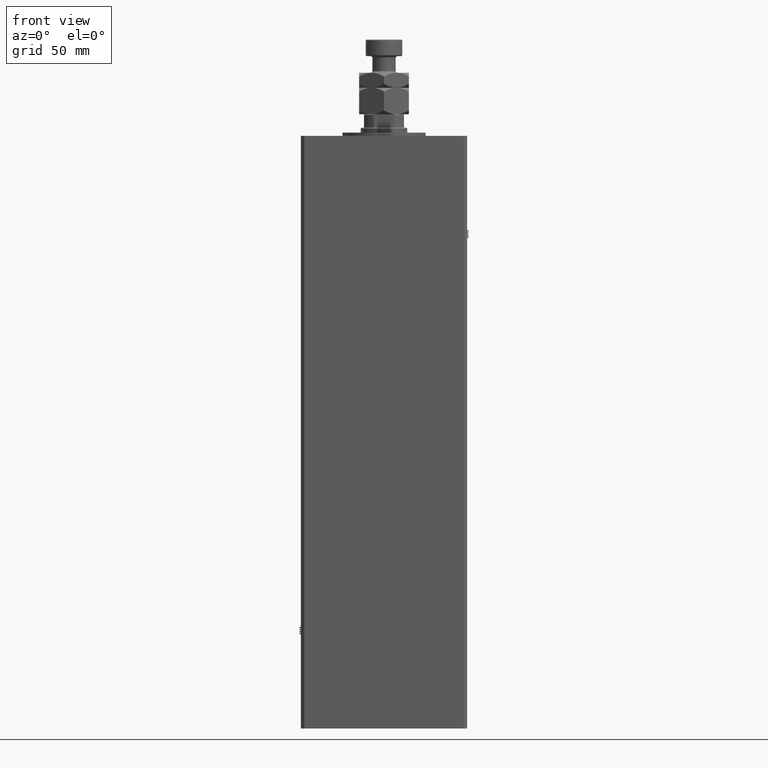
[diagram: clean part render]
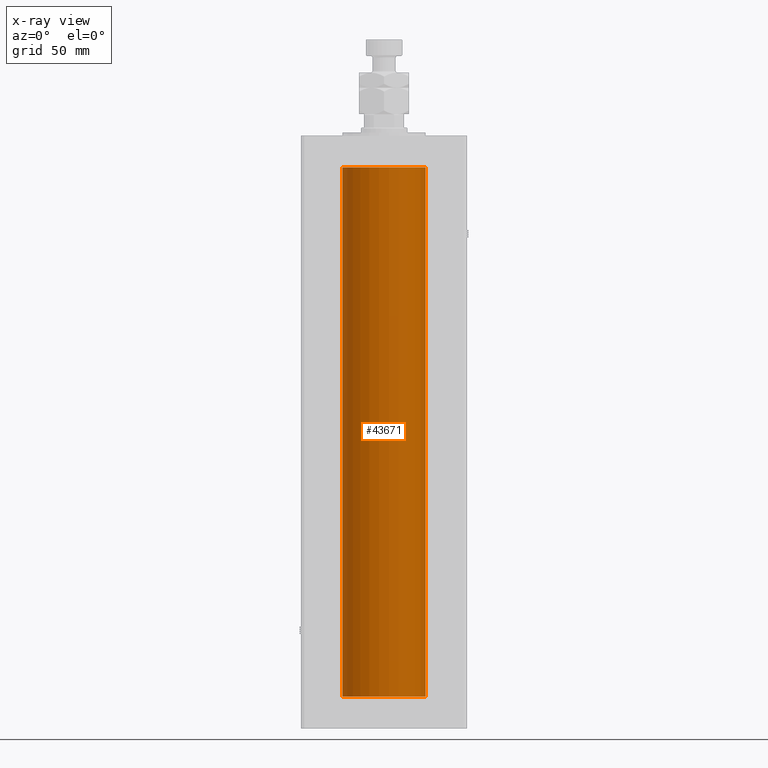
[diagram: x-ray — body ghosted, one internal face saturated and labeled with its STEP entity id]
A machine part, front view, then the same camera in x-ray: the body is ghosted and one INTERNAL B-rep face — a face not visible from any outside direction — is saturated and labeled: STEP entity #43671.
In plain terms, the highlighted cylindrical surface (partial cylindrical patch) has radius 25 mm, axis along (-0, -0, -1).
Its self-contained STEP definition (entity closure, byte-faithful):
#1636 = VECTOR ( 'NONE', #9676, 1000.000000000000000 ) ;
#1721 = CIRCLE ( 'NONE', #44943, 25.00000000000000000 ) ;
#1951 = EDGE_CURVE ( 'NONE', #48012, #3049, #44481, .T. ) ;
#2604 = CARTESIAN_POINT ( 'NONE',  ( -25.00000000000000000, 0.000000000000000000, 318.5000000000000000 ) ) ;
#3049 = VERTEX_POINT ( 'NONE', #12216 ) ;
#6072 = CARTESIAN_POINT ( 'NONE',  ( 0.000000000000000000, 0.000000000000000000, 318.5000000000000000 ) ) ;
#9027 = DIRECTION ( 'NONE',  ( -1.000000000000000000, 0.000000000000000000, 0.000000000000000000 ) ) ;
#9676 = DIRECTION ( 'NONE',  ( -0.000000000000000000, -0.000000000000000000, -1.000000000000000000 ) ) ;
#10965 = ORIENTED_EDGE ( 'NONE', *, *, #1951, .T. ) ;
#12216 = CARTESIAN_POINT ( 'NONE',  ( 25.00000000000000000, 3.061616997868383043E-15, 0.000000000000000000 ) ) ;
#12380 = DIRECTION ( 'NONE',  ( -0.000000000000000000, -0.000000000000000000, -1.000000000000000000 ) ) ;
#13344 = CARTESIAN_POINT ( 'NONE',  ( 0.000000000000000000, 0.000000000000000000, 318.5000000000000000 ) ) ;
#14989 = DIRECTION ( 'NONE',  ( -0.000000000000000000, 0.000000000000000000, 1.000000000000000000 ) ) ;
#15999 = CARTESIAN_POINT ( 'NONE',  ( -25.00000000000000000, 0.000000000000000000, 318.5000000000000000 ) ) ;
#21698 = CARTESIAN_POINT ( 'NONE',  ( -25.00000000000000000, 0.000000000000000000, 0.000000000000000000 ) ) ;
#26299 = DIRECTION ( 'NONE',  ( -0.000000000000000000, -0.000000000000000000, -1.000000000000000000 ) ) ;
#28210 = DIRECTION ( 'NONE',  ( 1.000000000000000000, 0.000000000000000000, 0.000000000000000000 ) ) ;
#29219 = EDGE_LOOP ( 'NONE', ( #32587, #10965, #38887, #35887 ) ) ;
#30130 = VECTOR ( 'NONE', #12380, 1000.000000000000000 ) ;
#32587 = ORIENTED_EDGE ( 'NONE', *, *, #53683, .T. ) ;
#32771 = AXIS2_PLACEMENT_3D ( 'NONE', #13344, #26299, #9027 ) ;
#33308 = CARTESIAN_POINT ( 'NONE',  ( 25.00000000000000000, 3.061616997868383043E-15, 318.5000000000000000 ) ) ;
#35494 = FACE_OUTER_BOUND ( 'NONE', #29219, .T. ) ;
#35887 = ORIENTED_EDGE ( 'NONE', *, *, #47664, .F. ) ;
#36650 = CIRCLE ( 'NONE', #51321, 25.00000000000000000 ) ;
#38605 = VERTEX_POINT ( 'NONE', #15999 ) ;
#38887 = ORIENTED_EDGE ( 'NONE', *, *, #53647, .F. ) ;
#39529 = CYLINDRICAL_SURFACE ( 'NONE', #32771, 25.00000000000000000 ) ;
#41437 = CARTESIAN_POINT ( 'NONE',  ( 0.000000000000000000, 0.000000000000000000, 0.000000000000000000 ) ) ;
#43671 = ADVANCED_FACE ( 'NONE', ( #35494 ), #39529, .F. ) ;
#43905 = CARTESIAN_POINT ( 'NONE',  ( 25.00000000000000000, 3.061616997868383043E-15, 318.5000000000000000 ) ) ;
#44481 = LINE ( 'NONE', #43905, #1636 ) ;
#44943 = AXIS2_PLACEMENT_3D ( 'NONE', #6072, #54107, #45764 ) ;
#45764 = DIRECTION ( 'NONE',  ( 1.000000000000000000, 0.000000000000000000, 0.000000000000000000 ) ) ;
#45937 = VERTEX_POINT ( 'NONE', #21698 ) ;
#47664 = EDGE_CURVE ( 'NONE', #38605, #45937, #55234, .T. ) ;
#48012 = VERTEX_POINT ( 'NONE', #33308 ) ;
#51321 = AXIS2_PLACEMENT_3D ( 'NONE', #41437, #14989, #28210 ) ;
#53647 = EDGE_CURVE ( 'NONE', #45937, #3049, #36650, .T. ) ;
#53683 = EDGE_CURVE ( 'NONE', #38605, #48012, #1721, .T. ) ;
#54107 = DIRECTION ( 'NONE',  ( -0.000000000000000000, 0.000000000000000000, 1.000000000000000000 ) ) ;
#55234 = LINE ( 'NONE', #2604, #30130 ) ;